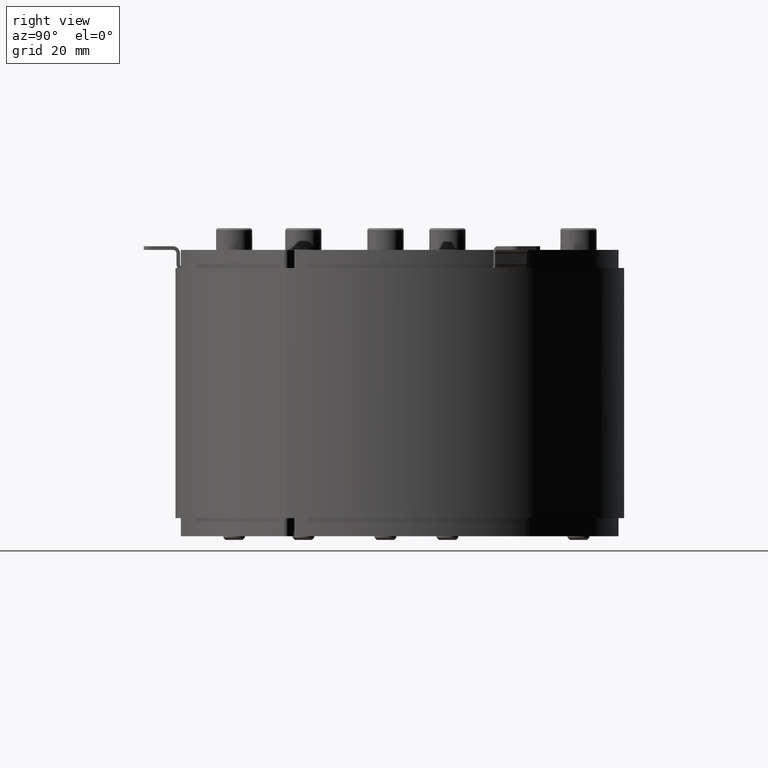
[diagram: clean part render]
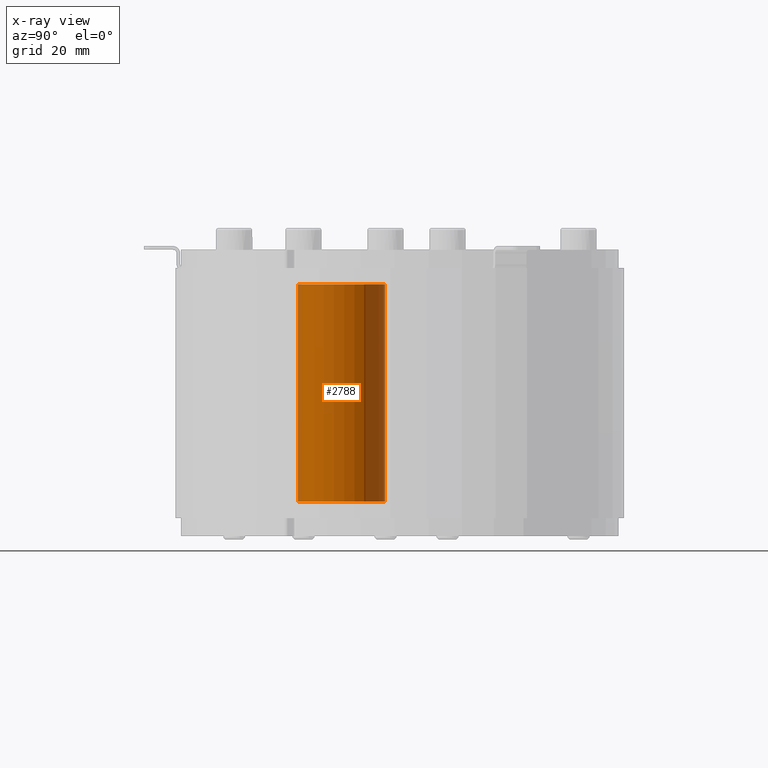
[diagram: x-ray — body ghosted, one internal face saturated and labeled with its STEP entity id]
A machine part, right view, then the same camera in x-ray: the body is ghosted and one INTERNAL B-rep face — a face not visible from any outside direction — is saturated and labeled: STEP entity #2788.
In plain terms, the highlighted cylindrical surface (bore or boss wall) has radius 12 mm, axis along (-0, 0, 1).
Its self-contained STEP definition (entity closure, byte-faithful):
#468=FACE_OUTER_BOUND('',#653,.T.);
#653=EDGE_LOOP('',(#2559,#2560,#2561,#2562));
#877=LINE('',#5052,#1099);
#1099=VECTOR('',#4189,12.);
#1232=CIRCLE('',#3319,12.);
#1233=CIRCLE('',#3320,12.);
#1468=VERTEX_POINT('',#5049);
#1469=VERTEX_POINT('',#5051);
#1832=EDGE_CURVE('',#1468,#1468,#1232,.T.);
#1833=EDGE_CURVE('',#1468,#1469,#877,.T.);
#1834=EDGE_CURVE('',#1469,#1469,#1233,.T.);
#2559=ORIENTED_EDGE('',*,*,#1832,.F.);
#2560=ORIENTED_EDGE('',*,*,#1833,.T.);
#2561=ORIENTED_EDGE('',*,*,#1834,.F.);
#2562=ORIENTED_EDGE('',*,*,#1833,.F.);
#2627=CYLINDRICAL_SURFACE('',#3318,12.);
#2788=ADVANCED_FACE('',(#468),#2627,.T.);
#3318=AXIS2_PLACEMENT_3D('',#5048,#4185,#4186);
#3319=AXIS2_PLACEMENT_3D('',#5050,#4187,#4188);
#3320=AXIS2_PLACEMENT_3D('',#5053,#4190,#4191);
#4185=DIRECTION('center_axis',(0.,1.,0.));
#4186=DIRECTION('ref_axis',(1.,0.,0.));
#4187=DIRECTION('center_axis',(0.,1.,0.));
#4188=DIRECTION('ref_axis',(1.,0.,0.));
#4189=DIRECTION('',(0.,-1.,0.));
#4190=DIRECTION('center_axis',(0.,-1.,0.));
#4191=DIRECTION('ref_axis',(1.,0.,0.));
#5048=CARTESIAN_POINT('Origin',(0.,0.,0.));
#5049=CARTESIAN_POINT('',(-12.,60.,1.46957615897682E-15));
#5050=CARTESIAN_POINT('Origin',(0.,60.,0.));
#5051=CARTESIAN_POINT('',(-12.,0.,1.46957615897682E-15));
#5052=CARTESIAN_POINT('',(-12.,0.,1.46957615897682E-15));
#5053=CARTESIAN_POINT('Origin',(0.,0.,0.));